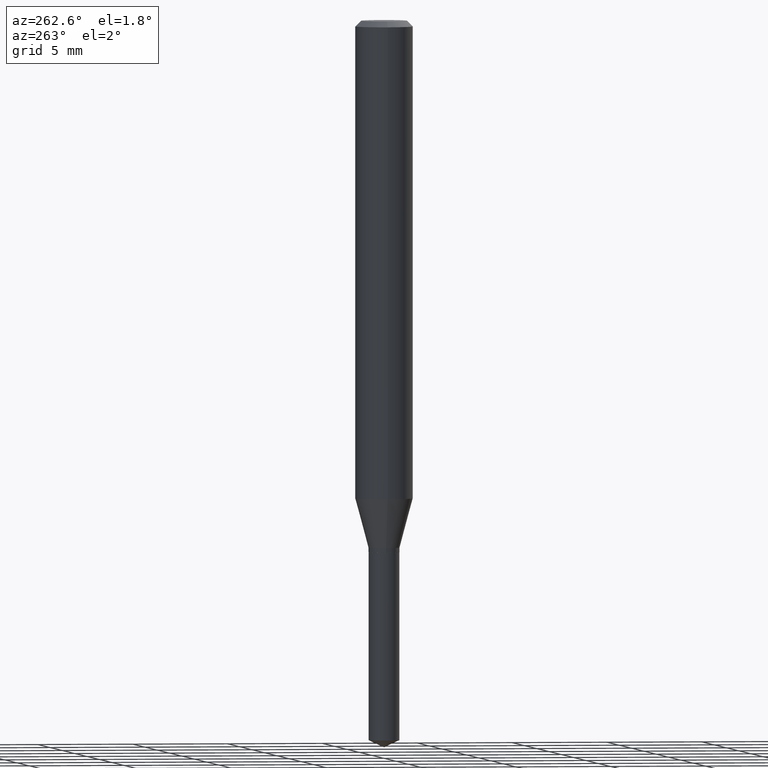
[diagram: clean part render]
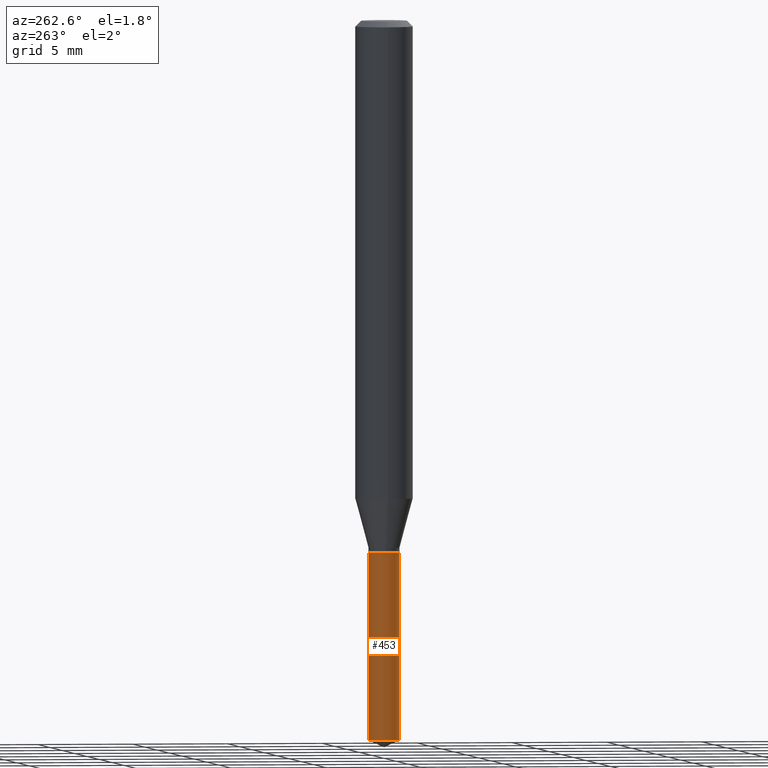
[diagram: same view with one face highlighted and labeled with its STEP entity id]
A machine part, auxiliary view. The second image highlights one B-rep face of the part: STEP entity #453.
In plain terms, the highlighted cylindrical surface (edge-blend (fillet) strip) has radius 0.8103 mm, axis along (-0, 0, 1).
Its self-contained STEP definition (entity closure, byte-faithful):
#11 = CARTESIAN_POINT ( 'NONE',  ( 2.676565608369631794E-29, -3.821426325363822773E-15, -1.094499999999999806 ) ) ;
#27 = AXIS2_PLACEMENT_3D ( 'NONE', #11, #269, #80 ) ;
#28 = VERTEX_POINT ( 'NONE', #187 ) ;
#37 = DIRECTION ( 'NONE',  ( -6.982962677686266711E-15, -1.000000000000000000, 4.281893406997278296E-15 ) ) ;
#80 = DIRECTION ( 'NONE',  ( -6.982962677686266711E-15, -1.000000000000000000, 4.281893406997278296E-15 ) ) ;
#92 = DIRECTION ( 'NONE',  ( -2.445470214571802116E-29, 3.491479321953280158E-15, 1.000000000000000000 ) ) ;
#94 = CARTESIAN_POINT ( 'NONE',  ( -2.227565094181651199E-16, -0.03190000000000382113, -1.094499999999999806 ) ) ;
#97 = EDGE_CURVE ( 'NONE', #392, #221, #139, .T. ) ;
#98 = DIRECTION ( 'NONE',  ( -2.445470214571802396E-29, 3.491479321953280158E-15, 1.000000000000000000 ) ) ;
#100 = CARTESIAN_POINT ( 'NONE',  ( 2.266631327074986663E-16, 0.03189999999999617447, -1.094500000000000028 ) ) ;
#112 = CARTESIAN_POINT ( 'NONE',  ( 2.266631327075081820E-16, 0.03189999999999483526, -1.481224785704855496 ) ) ;
#132 = ORIENTED_EDGE ( 'NONE', *, *, #176, .T. ) ;
#136 = LINE ( 'NONE', #94, #266 ) ;
#139 = CIRCLE ( 'NONE', #424, 0.03189999999999999780 ) ;
#160 = EDGE_CURVE ( 'NONE', #392, #198, #181, .T. ) ;
#175 = CARTESIAN_POINT ( 'NONE',  ( -2.227565094181557522E-16, -0.03190000000000518116, -1.481224785704855496 ) ) ;
#176 = EDGE_CURVE ( 'NONE', #221, #28, #136, .T. ) ;
#180 = EDGE_LOOP ( 'NONE', ( #194, #488, #132, #436 ) ) ;
#181 = LINE ( 'NONE', #100, #438 ) ;
#187 = CARTESIAN_POINT ( 'NONE',  ( -2.227565094181651199E-16, -0.03190000000000382113, -1.094499999999999806 ) ) ;
#194 = ORIENTED_EDGE ( 'NONE', *, *, #160, .F. ) ;
#198 = VERTEX_POINT ( 'NONE', #476 ) ;
#218 = CARTESIAN_POINT ( 'NONE',  ( 2.676565608369631794E-29, -3.821426325363822773E-15, -1.094499999999999806 ) ) ;
#221 = VERTEX_POINT ( 'NONE', #175 ) ;
#242 = DIRECTION ( 'NONE',  ( -2.445470214571802396E-29, 3.491479321953280158E-15, 1.000000000000000000 ) ) ;
#258 = AXIS2_PLACEMENT_3D ( 'NONE', #218, #415, #37 ) ;
#266 = VECTOR ( 'NONE', #242, 39.37007874015748143 ) ;
#269 = DIRECTION ( 'NONE',  ( -2.445470214571802116E-29, 3.491479321953280158E-15, 1.000000000000000000 ) ) ;
#274 = CYLINDRICAL_SURFACE ( 'NONE', #27, 0.03189999999999999780 ) ;
#305 = FACE_OUTER_BOUND ( 'NONE', #180, .T. ) ;
#323 = CIRCLE ( 'NONE', #258, 0.03189999999999999780 ) ;
#346 = CARTESIAN_POINT ( 'NONE',  ( 3.622289553047519167E-29, -5.171667917939139796E-15, -1.481224785704855496 ) ) ;
#392 = VERTEX_POINT ( 'NONE', #112 ) ;
#400 = EDGE_CURVE ( 'NONE', #198, #28, #323, .T. ) ;
#415 = DIRECTION ( 'NONE',  ( -2.445470214571802116E-29, 3.491479321953280158E-15, 1.000000000000000000 ) ) ;
#424 = AXIS2_PLACEMENT_3D ( 'NONE', #346, #92, #426 ) ;
#426 = DIRECTION ( 'NONE',  ( -6.982962677686266711E-15, -1.000000000000000000, 0.000000000000000000 ) ) ;
#436 = ORIENTED_EDGE ( 'NONE', *, *, #400, .F. ) ;
#438 = VECTOR ( 'NONE', #98, 39.37007874015748143 ) ;
#453 = ADVANCED_FACE ( 'NONE', ( #305 ), #274, .T. ) ;
#476 = CARTESIAN_POINT ( 'NONE',  ( 2.266631327075082313E-16, 0.03189999999999617447, -1.094500000000000028 ) ) ;
#488 = ORIENTED_EDGE ( 'NONE', *, *, #97, .T. ) ;